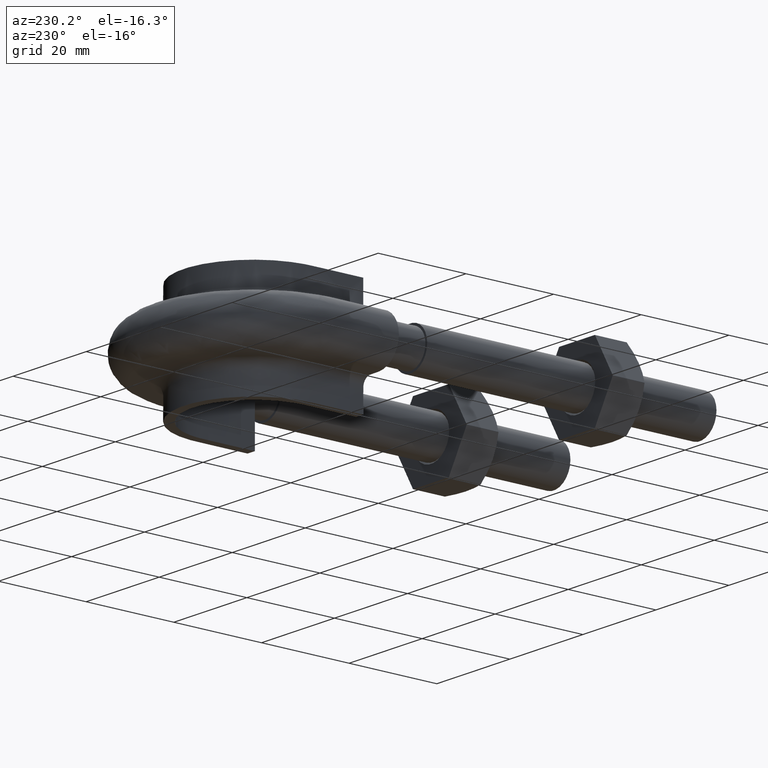
[diagram: clean part render]
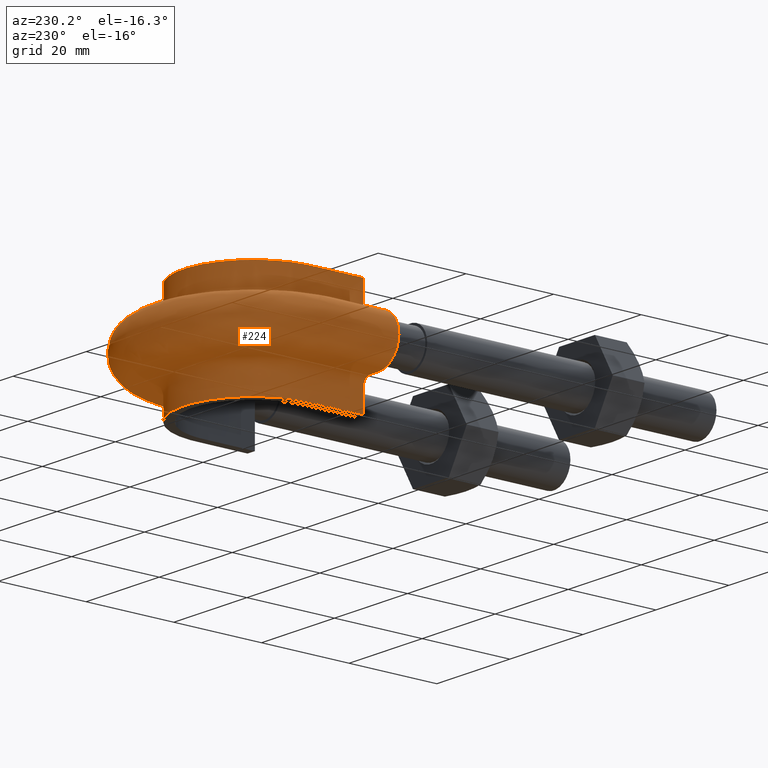
[diagram: same view with one face highlighted and labeled with its STEP entity id]
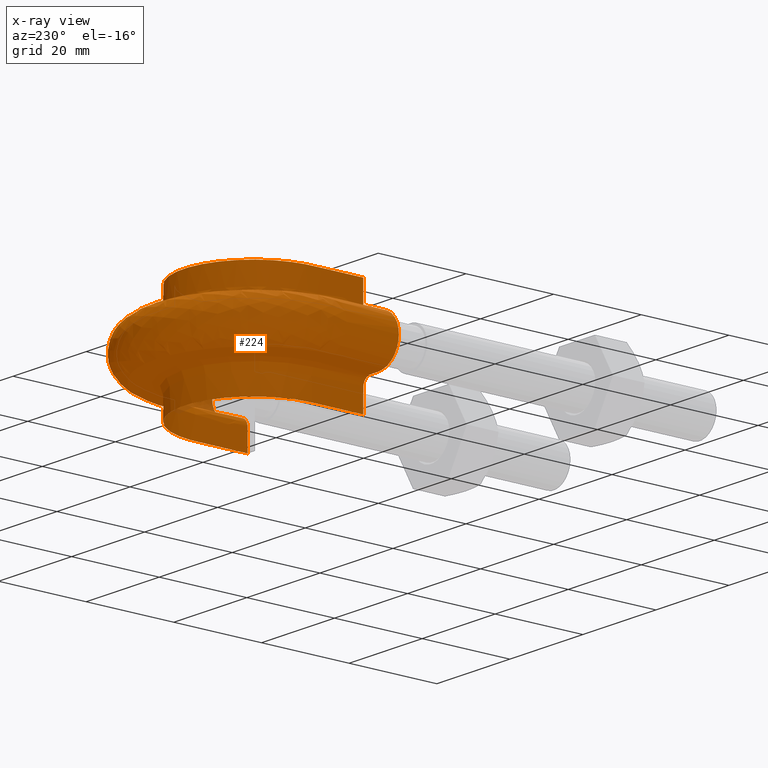
[diagram: x-ray of the same camera — body ghosted, the highlighted face saturated]
A machine part, auxiliary view. The second image highlights one B-rep face of the part: STEP entity #224.
The next image is the same camera in x-ray: the body ghosted, the highlighted face saturated — about 1% of this face is hidden behind the body in this view.
In plain terms, the highlighted face is a freeform B-spline surface patch.
Its self-contained STEP definition (entity closure, byte-faithful):
#224 = ADVANCED_FACE( '', ( #291 ), #292, .F. );
#291 = FACE_OUTER_BOUND( '', #431, .T. );
#292 = B_SPLINE_SURFACE_WITH_KNOTS( '', 3, 3, ( ( #432, #433, #434, #435, #436, #437, #438, #439, #440, #441, #442, #443, #444, #445, #446, #447, #448, #449 ), ( #450, #451, #452, #453, #454, #455, #456, #457, #458, #459, #460, #461, #462, #463, #464, #465, #466, #467 ), ( #468, #469, #470, #471, #472, #473, #474, #475, #476, #477, #478, #479, #480, #481, #482, #483, #484, #485 ), ( #486, #487, #488, #489, #490, #491, #492, #493, #494, #495, #496, #497, #498, #499, #500, #501, #502, #503 ), ( #504, #505, #506, #507, #508, #509, #510, #511, #512, #513, #514, #515, #516, #517, #518, #519, #520, #521 ), ( #522, #523, #524, #525, #526, #527, #528, #529, #530, #531, #532, #533, #534, #535, #536, #537, #538, #539 ), ( #540, #541, #542, #543, #544, #545, #546, #547, #548, #549, #550, #551, #552, #553, #554, #555, #556, #557 ), ( #558, #559, #560, #561, #562, #563, #564, #565, #566, #567, #568, #569, #570, #571, #572, #573, #574, #575 ), ( #576, #577, #578, #579, #580, #581, #582, #583, #584, #585, #586, #587, #588, #589, #590, #591, #592, #593 ), ( #594, #595, #596, #597, #598, #599, #600, #601, #602, #603, #604, #605, #606, #607, #608, #609, #610, #611 ), ( #612, #613, #614, #615, #616, #617, #618, #619, #620, #621, #622, #623, #624, #625, #626, #627, #628, #629 ), ( #630, #631, #632, #633, #634, #635, #636, #637, #638, #639, #640, #641, #642, #643, #644, #645, #646, #647 ), ( #648, #649, #650, #651, #652, #653, #654, #655, #656, #657, #658, #659, #660, #661, #662, #663, #664, #665 ), ( #666, #667, #668, #669, #670, #671, #672, #673, #674, #675, #676, #677, #678, #679, #680, #681, #682, #683 ), ( #684, #685, #686, #687, #688, #689, #690, #691, #692, #693, #694, #695, #696, #697, #698, #699, #700, #701 ), ( #702, #703, #704, #705, #706, #707, #708, #709, #710, #711, #712, #713, #714, #715, #716, #717, #718, #719 ), ( #720, #721, #722, #723, #724, #725, #726, #727, #728, #729, #730, #731, #732, #733, #734, #735, #736, #737 ), ( #738, #739, #740, #741, #742, #743, #744, #745, #746, #747, #748, #749, #750, #751, #752, #753, #754, #755 ), ( #756, #757, #758, #759, #760, #761, #762, #763, #764, #765, #766, #767, #768, #769, #770, #771, #772, #773 ), ( #774, #775, #776, #777, #778, #779, #780, #781, #782, #783, #784, #785, #786, #787, #788, #789, #790, #791 ), ( #792, #793, #794, #795, #796, #797, #798, #799, #800, #801, #802, #803, #804, #805, #806, #807, #808, #809 ), ( #810, #811, #812, #813, #814, #815, #816, #817, #818, #819, #820, #821, #822, #823, #824, #825, #826, #827 ), ( #828, #829, #830, #831, #832, #833, #834, #835, #836, #837, #838, #839, #840, #841, #842, #843, #844, #845 ), ( #846, #847, #848, #849, #850, #851, #852, #853, #854, #855, #856, #857, #858, #859, #860, #861, #862, #863 ), ( #864, #865, #866, #867, #868, #869, #870, #871, #872, #873, #874, #875, #876, #877, #878, #879, #880, #881 ), ( #882, #883, #884, #885, #886, #887, #888, #889, #890, #891, #892, #893, #894, #895, #896, #897, #898, #899 ), ( #900, #901, #902, #903, #904, #905, #906, #907, #908, #909, #910, #911, #912, #913, #914, #915, #916, #917 ), ( #918, #919, #920, #921, #922, #923, #924, #925, #926, #927, #928, #929, #930, #931, #932, #933, #934, #935 ), ( #936, #937, #938, #939, #940, #941, #942, #943, #944, #945, #946, #947, #948, #949, #950, #951, #952, #953 ), ( #954, #955, #956, #957, #958, #959, #960, #961, #962, #963, #964, #965, #966, #967, #968, #969, #970, #971 ), ( #972, #973, #974, #975, #976, #977, #978, #979, #980, #981, #982, #983, #984, #985, #986, #987, #988, #989 ) ), .UNSPECIFIED., .F., .F., .F., ( 4, 3, 1, 1, 1, 3, 3, 1, 1, 1, 3, 3, 1, 1, 1, 3, 4 ), ( 4, 3, 1, 1, 1, 1, 1, 1, 1, 1, 3, 4 ), ( 0.000000000000000, 0.0526315789473684, 0.105263157894737, 0.157894736842105, 0.210526315789474, 0.263157894736842, 0.315789473684211, 0.368421052631579, 0.421052631578947, 0.473684210526316, 0.526315789473684, 0.578947368421053, 0.631578947368421, 0.684210526315789, 0.736842105263158, 0.789473684210526, 0.842105263157895 ), ( 0.000000000000000, 1.00000000000000, 1.50000000000000, 1.75000000000000, 2.00000000000000, 3.00000000000000, 4.00000000000000, 5.00000000000000, 5.25000000000000, 5.50000000000000, 6.00000000000000, 7.00000000000000 ), .UNSPECIFIED. );
#431 = EDGE_LOOP( '', ( #1329, #1330, #1331, #1332 ) );
#432 = CARTESIAN_POINT( '', ( -15.8500000000000, 69.0500000000000, 12.5000000000000 ) );
#433 = CARTESIAN_POINT( '', ( -15.8500000000000, 74.4166666666667, 12.5000000000000 ) );
#434 = CARTESIAN_POINT( '', ( -15.8500000000000, 79.7833333333333, 12.5000000000000 ) );
#435 = CARTESIAN_POINT( '', ( -15.8500000000000, 85.1500000000000, 12.5000000000000 ) );
#436 = CARTESIAN_POINT( '', ( -15.8500000000000, 86.7930222221415, 12.5000000000000 ) );
#437 = CARTESIAN_POINT( '', ( -15.4471644107632, 89.2907471890249, 12.5000000000000 ) );
#438 = CARTESIAN_POINT( '', ( -14.1686079776779, 92.3865460861670, 12.5000000000000 ) );
#439 = CARTESIAN_POINT( '', ( -11.5879210877828, 96.6228758250557, 12.5000000000000 ) );
#440 = CARTESIAN_POINT( '', ( -5.22635801800513, 101.253208628485, 12.5000000000000 ) );
#441 = CARTESIAN_POINT( '', ( 5.22635801800517, 101.253208628485, 12.5000000000000 ) );
#442 = CARTESIAN_POINT( '', ( 11.5879210877829, 96.6228758250557, 12.5000000000000 ) );
#443 = CARTESIAN_POINT( '', ( 14.1686079776779, 92.3865460861669, 12.5000000000000 ) );
#444 = CARTESIAN_POINT( '', ( 15.4471644107632, 89.2907471890249, 12.5000000000000 ) );
#445 = CARTESIAN_POINT( '', ( 15.8500000000000, 86.7930222221415, 12.5000000000000 ) );
#446 = CARTESIAN_POINT( '', ( 15.8500000000000, 85.1500000000000, 12.5000000000000 ) );
#447 = CARTESIAN_POINT( '', ( 15.8500000000000, 79.7833333333333, 12.5000000000000 ) );
#448 = CARTESIAN_POINT( '', ( 15.8500000000000, 74.4166666666667, 12.5000000000000 ) );
#449 = CARTESIAN_POINT( '', ( 15.8500000000000, 69.0500000000000, 12.5000000000000 ) );
#450 = CARTESIAN_POINT( '', ( -15.8500000000000, 69.0500000000000, 10.8666666666667 ) );
#451 = CARTESIAN_POINT( '', ( -15.8500000000000, 74.4166666666667, 10.8666666666667 ) );
#452 = CARTESIAN_POINT( '', ( -15.8500000000000, 79.7833333333333, 10.8666666666667 ) );
#453 = CARTESIAN_POINT( '', ( -15.8500000000000, 85.1500000000000, 10.8666666666667 ) );
#454 = CARTESIAN_POINT( '', ( -15.8500000000000, 86.7930222221415, 10.8666666666667 ) );
#455 = CARTESIAN_POINT( '', ( -15.4471644107632, 89.2907471890249, 10.8666666666667 ) );
#456 = CARTESIAN_POINT( '', ( -14.1686079776779, 92.3865460861670, 10.8666666666667 ) );
#457 = CARTESIAN_POINT( '', ( -11.5879210877828, 96.6228758250557, 10.8666666666667 ) );
#458 = CARTESIAN_POINT( '', ( -5.22635801800512, 101.253208628485, 10.8666666666667 ) );
#459 = CARTESIAN_POINT( '', ( 5.22635801800516, 101.253208628485, 10.8666666666666 ) );
#460 = CARTESIAN_POINT( '', ( 11.5879210877829, 96.6228758250557, 10.8666666666667 ) );
#461 = CARTESIAN_POINT( '', ( 14.1686079776779, 92.3865460861669, 10.8666666666666 ) );
#462 = CARTESIAN_POINT( '', ( 15.4471644107632, 89.2907471890249, 10.8666666666667 ) );
#463 = CARTESIAN_POINT( '', ( 15.8500000000000, 86.7930222221415, 10.8666666666667 ) );
#464 = CARTESIAN_POINT( '', ( 15.8500000000000, 85.1500000000000, 10.8666666666667 ) );
#465 = CARTESIAN_POINT( '', ( 15.8500000000000, 79.7833333333333, 10.8666666666667 ) );
#466 = CARTESIAN_POINT( '', ( 15.8500000000000, 74.4166666666667, 10.8666666666667 ) );
#467 = CARTESIAN_POINT( '', ( 15.8500000000000, 69.0500000000000, 10.8666666666667 ) );
#468 = CARTESIAN_POINT( '', ( -15.8500000000000, 69.0500000000000, 9.23333333333332 ) );
#469 = CARTESIAN_POINT( '', ( -15.8500000000000, 74.4166666666667, 9.23333333333332 ) );
#470 = CARTESIAN_POINT( '', ( -15.8500000000000, 79.7833333333333, 9.23333333333332 ) );
#471 = CARTESIAN_POINT( '', ( -15.8500000000000, 85.1500000000000, 9.23333333333332 ) );
#472 = CARTESIAN_POINT( '', ( -15.8500000000000, 86.7930222221415, 9.23333333333332 ) );
#473 = CARTESIAN_POINT( '', ( -15.4471644107632, 89.2907471890249, 9.23333333333331 ) );
#474 = CARTESIAN_POINT( '', ( -14.1686079776779, 92.3865460861670, 9.23333333333332 ) );
#475 = CARTESIAN_POINT( '', ( -11.5879210877828, 96.6228758250557, 9.23333333333332 ) );
#476 = CARTESIAN_POINT( '', ( -5.22635801800512, 101.253208628485, 9.23333333333333 ) );
#477 = CARTESIAN_POINT( '', ( 5.22635801800516, 101.253208628485, 9.23333333333331 ) );
#478 = CARTESIAN_POINT( '', ( 11.5879210877829, 96.6228758250557, 9.23333333333333 ) );
#479 = CARTESIAN_POINT( '', ( 14.1686079776779, 92.3865460861669, 9.23333333333331 ) );
#480 = CARTESIAN_POINT( '', ( 15.4471644107632, 89.2907471890249, 9.23333333333332 ) );
#481 = CARTESIAN_POINT( '', ( 15.8500000000000, 86.7930222221415, 9.23333333333332 ) );
#482 = CARTESIAN_POINT( '', ( 15.8500000000000, 85.1500000000000, 9.23333333333332 ) );
#483 = CARTESIAN_POINT( '', ( 15.8500000000000, 79.7833333333333, 9.23333333333332 ) );
#484 = CARTESIAN_POINT( '', ( 15.8500000000000, 74.4166666666667, 9.23333333333332 ) );
#485 = CARTESIAN_POINT( '', ( 15.8500000000000, 69.0500000000000, 9.23333333333332 ) );
#486 = CARTESIAN_POINT( '', ( -15.8500000000000, 69.0500000000000, 7.59999999999998 ) );
#487 = CARTESIAN_POINT( '', ( -15.8500000000000, 74.4166666666667, 7.59999999999998 ) );
#488 = CARTESIAN_POINT( '', ( -15.8500000000000, 79.7833333333333, 7.59999999999998 ) );
#489 = CARTESIAN_POINT( '', ( -15.8500000000000, 85.1500000000000, 7.59999999999998 ) );
#490 = CARTESIAN_POINT( '', ( -15.8500000000000, 86.7930222221415, 7.59999999999998 ) );
#491 = CARTESIAN_POINT( '', ( -15.4471644107632, 89.2907471890249, 7.59999999999998 ) );
#492 = CARTESIAN_POINT( '', ( -14.1686079776779, 92.3865460861670, 7.59999999999998 ) );
#493 = CARTESIAN_POINT( '', ( -11.5879210877828, 96.6228758250557, 7.59999999999998 ) );
#494 = CARTESIAN_POINT( '', ( -5.22635801800513, 101.253208628485, 7.59999999999999 ) );
#495 = CARTESIAN_POINT( '', ( 5.22635801800517, 101.253208628485, 7.59999999999997 ) );
#496 = CARTESIAN_POINT( '', ( 11.5879210877829, 96.6228758250557, 7.59999999999999 ) );
#497 = CARTESIAN_POINT( '', ( 14.1686079776779, 92.3865460861669, 7.59999999999998 ) );
#498 = CARTESIAN_POINT( '', ( 15.4471644107632, 89.2907471890249, 7.59999999999998 ) );
#499 = CARTESIAN_POINT( '', ( 15.8500000000000, 86.7930222221415, 7.59999999999998 ) );
#500 = CARTESIAN_POINT( '', ( 15.8500000000000, 85.1500000000000, 7.59999999999998 ) );
#501 = CARTESIAN_POINT( '', ( 15.8500000000000, 79.7833333333333, 7.59999999999998 ) );
#502 = CARTESIAN_POINT( '', ( 15.8500000000000, 74.4166666666667, 7.59999999999998 ) );
#503 = CARTESIAN_POINT( '', ( 15.8500000000000, 69.0500000000000, 7.59999999999998 ) );
#504 = CARTESIAN_POINT( '', ( -15.8500000000000, 69.0500000000000, 7.33823584172332 ) );
#505 = CARTESIAN_POINT( '', ( -15.8500000000000, 74.4166666666667, 7.33823584172332 ) );
#506 = CARTESIAN_POINT( '', ( -15.8500000000000, 79.7833333333333, 7.33823584172332 ) );
#507 = CARTESIAN_POINT( '', ( -15.8500000000000, 85.1500000000000, 7.33823584172332 ) );
#508 = CARTESIAN_POINT( '', ( -15.8500000000000, 86.7930222221415, 7.33823584172332 ) );
#509 = CARTESIAN_POINT( '', ( -15.4471644107632, 89.2907471890249, 7.33823584172332 ) );
#510 = CARTESIAN_POINT( '', ( -14.1686079776779, 92.3865460861670, 7.33823584172332 ) );
#511 = CARTESIAN_POINT( '', ( -11.5879210877828, 96.6228758250557, 7.33823584172332 ) );
#512 = CARTESIAN_POINT( '', ( -5.22635801800512, 101.253208628485, 7.33823584172333 ) );
#513 = CARTESIAN_POINT( '', ( 5.22635801800517, 101.253208628485, 7.33823584172331 ) );
#514 = CARTESIAN_POINT( '', ( 11.5879210877829, 96.6228758250557, 7.33823584172333 ) );
#515 = CARTESIAN_POINT( '', ( 14.1686079776779, 92.3865460861669, 7.33823584172331 ) );
#516 = CARTESIAN_POINT( '', ( 15.4471644107632, 89.2907471890249, 7.33823584172332 ) );
#517 = CARTESIAN_POINT( '', ( 15.8500000000000, 86.7930222221415, 7.33823584172332 ) );
#518 = CARTESIAN_POINT( '', ( 15.8500000000000, 85.1500000000000, 7.33823584172332 ) );
#519 = CARTESIAN_POINT( '', ( 15.8500000000000, 79.7833333333333, 7.33823584172332 ) );
#520 = CARTESIAN_POINT( '', ( 15.8500000000000, 74.4166666666667, 7.33823584172332 ) );
#521 = CARTESIAN_POINT( '', ( 15.8500000000000, 69.0500000000000, 7.33823584172332 ) );
#522 = CARTESIAN_POINT( '', ( -15.9541362568359, 69.0500000000000, 6.81470752516999 ) );
#523 = CARTESIAN_POINT( '', ( -15.9541362568359, 74.4166666666667, 6.81470752516999 ) );
#524 = CARTESIAN_POINT( '', ( -15.9541362568359, 79.7833333333333, 6.81470752516999 ) );
#525 = CARTESIAN_POINT( '', ( -15.9541362568359, 85.1500000000000, 6.81470752516999 ) );
#526 = CARTESIAN_POINT( '', ( -15.9541362568359, 86.8043008624542, 6.81470752516999 ) );
#527 = CARTESIAN_POINT( '', ( -15.5486136031007, 89.3181109096887, 6.81470752516999 ) );
#528 = CARTESIAN_POINT( '', ( -14.2619323017759, 92.4337199575683, 6.81470752516999 ) );
#529 = CARTESIAN_POINT( '', ( -11.6637657839457, 96.6987055899314, 6.81470752516999 ) );
#530 = CARTESIAN_POINT( '', ( -5.26084038438269, 101.358879437208, 6.81470752517000 ) );
#531 = CARTESIAN_POINT( '', ( 5.26084038438274, 101.358879437208, 6.81470752516999 ) );
#532 = CARTESIAN_POINT( '', ( 11.6637657839457, 96.6987055899314, 6.81470752517000 ) );
#533 = CARTESIAN_POINT( '', ( 14.2619323017760, 92.4337199575683, 6.81470752516999 ) );
#534 = CARTESIAN_POINT( '', ( 15.5486136031007, 89.3181109096888, 6.81470752516999 ) );
#535 = CARTESIAN_POINT( '', ( 15.9541362568359, 86.8043008624542, 6.81470752516999 ) );
#536 = CARTESIAN_POINT( '', ( 15.9541362568359, 85.1500000000000, 6.81470752516999 ) );
#537 = CARTESIAN_POINT( '', ( 15.9541362568359, 79.7833333333333, 6.81470752516999 ) );
#538 = CARTESIAN_POINT( '', ( 15.9541362568359, 74.4166666666667, 6.81470752516999 ) );
#539 = CARTESIAN_POINT( '', ( 15.9541362568359, 69.0500000000000, 6.81470752516999 ) );
#540 = CARTESIAN_POINT( '', ( -16.3989687109389, 69.0500000000000, 6.14896871093886 ) );
#541 = CARTESIAN_POINT( '', ( -16.3989687109389, 74.4166666666667, 6.14896871093886 ) );
#542 = CARTESIAN_POINT( '', ( -16.3989687109389, 79.7833333333333, 6.14896871093886 ) );
#543 = CARTESIAN_POINT( '', ( -16.3989687109389, 85.1500000000000, 6.14896871093886 ) );
#544 = CARTESIAN_POINT( '', ( -16.3989687109389, 86.8524791377414, 6.14896871093886 ) );
#545 = CARTESIAN_POINT( '', ( -15.9819678887780, 89.4349988350486, 6.14896871093886 ) );
#546 = CARTESIAN_POINT( '', ( -14.6605800866819, 92.6352296874415, 6.14896871093886 ) );
#547 = CARTESIAN_POINT( '', ( -11.9877469154933, 97.0226229404160, 6.14896871093886 ) );
#548 = CARTESIAN_POINT( '', ( -5.40813659153540, 101.810266942385, 6.14896871093887 ) );
#549 = CARTESIAN_POINT( '', ( 5.40813659153545, 101.810266942385, 6.14896871093885 ) );
#550 = CARTESIAN_POINT( '', ( 11.9877469154933, 97.0226229404160, 6.14896871093887 ) );
#551 = CARTESIAN_POINT( '', ( 14.6605800866819, 92.6352296874415, 6.14896871093886 ) );
#552 = CARTESIAN_POINT( '', ( 15.9819678887781, 89.4349988350486, 6.14896871093886 ) );
#553 = CARTESIAN_POINT( '', ( 16.3989687109389, 86.8524791377414, 6.14896871093886 ) );
#554 = CARTESIAN_POINT( '', ( 16.3989687109389, 85.1500000000000, 6.14896871093886 ) );
#555 = CARTESIAN_POINT( '', ( 16.3989687109389, 79.7833333333333, 6.14896871093886 ) );
#556 = CARTESIAN_POINT( '', ( 16.3989687109389, 74.4166666666667, 6.14896871093886 ) );
#557 = CARTESIAN_POINT( '', ( 16.3989687109389, 69.0500000000000, 6.14896871093886 ) );
#558 = CARTESIAN_POINT( '', ( -17.0647075251700, 69.0500000000000, 5.70413625683589 ) );
#559 = CARTESIAN_POINT( '', ( -17.0647075251700, 74.4166666666667, 5.70413625683589 ) );
#560 = CARTESIAN_POINT( '', ( -17.0647075251700, 79.7833333333333, 5.70413625683589 ) );
#561 = CARTESIAN_POINT( '', ( -17.0647075251700, 85.1500000000000, 5.70413625683589 ) );
#562 = CARTESIAN_POINT( '', ( -17.0647075251700, 86.9245830221716, 5.70413625683589 ) );
#563 = CARTESIAN_POINT( '', ( -16.6305284099986, 89.6099339777281, 5.70413625683589 ) );
#564 = CARTESIAN_POINT( '', ( -15.2571986588459, 92.9368103104028, 5.70413625683589 ) );
#565 = CARTESIAN_POINT( '', ( -12.4726189439622, 97.5073995137787, 5.70413625683589 ) );
#566 = CARTESIAN_POINT( '', ( -5.62858094397892, 102.485816083828, 5.70413625683590 ) );
#567 = CARTESIAN_POINT( '', ( 5.62858094397897, 102.485816083828, 5.70413625683589 ) );
#568 = CARTESIAN_POINT( '', ( 12.4726189439623, 97.5073995137786, 5.70413625683590 ) );
#569 = CARTESIAN_POINT( '', ( 15.2571986588460, 92.9368103104028, 5.70413625683589 ) );
#570 = CARTESIAN_POINT( '', ( 16.6305284099986, 89.6099339777282, 5.70413625683589 ) );
#571 = CARTESIAN_POINT( '', ( 17.0647075251700, 86.9245830221715, 5.70413625683589 ) );
#572 = CARTESIAN_POINT( '', ( 17.0647075251700, 85.1500000000000, 5.70413625683589 ) );
#573 = CARTESIAN_POINT( '', ( 17.0647075251700, 79.7833333333333, 5.70413625683589 ) );
#574 = CARTESIAN_POINT( '', ( 17.0647075251700, 74.4166666666667, 5.70413625683589 ) );
#575 = CARTESIAN_POINT( '', ( 17.0647075251700, 69.0500000000000, 5.70413625683589 ) );
#576 = CARTESIAN_POINT( '', ( -17.5882358417233, 69.0500000000000, 5.59999999999998 ) );
#577 = CARTESIAN_POINT( '', ( -17.5882358417233, 74.4166666666667, 5.59999999999998 ) );
#578 = CARTESIAN_POINT( '', ( -17.5882358417233, 79.7833333333333, 5.59999999999998 ) );
#579 = CARTESIAN_POINT( '', ( -17.5882358417233, 85.1500000000000, 5.59999999999998 ) );
#580 = CARTESIAN_POINT( '', ( -17.5882358417233, 86.9812845760328, 5.59999999999998 ) );
#581 = CARTESIAN_POINT( '', ( -17.1405479410810, 89.7475006912730, 5.59999999999998 ) );
#582 = CARTESIAN_POINT( '', ( -15.7263717189600, 93.1739693770954, 5.59999999999998 ) );
#583 = CARTESIAN_POINT( '', ( -12.8539159802501, 97.8886214854165, 5.59999999999998 ) );
#584 = CARTESIAN_POINT( '', ( -5.80193550625081, 103.017059113690, 5.59999999999999 ) );
#585 = CARTESIAN_POINT( '', ( 5.80193550625085, 103.017059113690, 5.59999999999998 ) );
#586 = CARTESIAN_POINT( '', ( 12.8539159802502, 97.8886214854165, 5.59999999999999 ) );
#587 = CARTESIAN_POINT( '', ( 15.7263717189600, 93.1739693770954, 5.59999999999998 ) );
#588 = CARTESIAN_POINT( '', ( 17.1405479410811, 89.7475006912730, 5.59999999999999 ) );
#589 = CARTESIAN_POINT( '', ( 17.5882358417234, 86.9812845760328, 5.59999999999998 ) );
#590 = CARTESIAN_POINT( '', ( 17.5882358417234, 85.1500000000000, 5.59999999999998 ) );
#591 = CARTESIAN_POINT( '', ( 17.5882358417234, 79.7833333333333, 5.59999999999998 ) );
#592 = CARTESIAN_POINT( '', ( 17.5882358417234, 74.4166666666667, 5.59999999999998 ) );
#593 = CARTESIAN_POINT( '', ( 17.5882358417234, 69.0500000000000, 5.59999999999998 ) );
#594 = CARTESIAN_POINT( '', ( -17.8500000000000, 69.0500000000000, 5.59999999999998 ) );
#595 = CARTESIAN_POINT( '', ( -17.8500000000000, 74.4166666666667, 5.59999999999998 ) );
#596 = CARTESIAN_POINT( '', ( -17.8500000000000, 79.7833333333333, 5.59999999999998 ) );
#597 = CARTESIAN_POINT( '', ( -17.8500000000000, 85.1500000000000, 5.59999999999998 ) );
#598 = CARTESIAN_POINT( '', ( -17.8500000000000, 87.0096353529635, 5.59999999999998 ) );
#599 = CARTESIAN_POINT( '', ( -17.3955577066223, 89.8162840480455, 5.59999999999998 ) );
#600 = CARTESIAN_POINT( '', ( -15.9609582490170, 93.2925489104417, 5.59999999999998 ) );
#601 = CARTESIAN_POINT( '', ( -13.0445644983941, 98.0792324712354, 5.59999999999998 ) );
#602 = CARTESIAN_POINT( '', ( -5.88861278738675, 103.282680628621, 5.59999999999999 ) );
#603 = CARTESIAN_POINT( '', ( 5.88861278738680, 103.282680628621, 5.59999999999998 ) );
#604 = CARTESIAN_POINT( '', ( 13.0445644983941, 98.0792324712354, 5.59999999999999 ) );
#605 = CARTESIAN_POINT( '', ( 15.9609582490170, 93.2925489104416, 5.59999999999998 ) );
#606 = CARTESIAN_POINT( '', ( 17.3955577066223, 89.8162840480455, 5.59999999999999 ) );
#607 = CARTESIAN_POINT( '', ( 17.8500000000000, 87.0096353529635, 5.59999999999998 ) );
#608 = CARTESIAN_POINT( '', ( 17.8500000000000, 85.1500000000000, 5.59999999999998 ) );
#609 = CARTESIAN_POINT( '', ( 17.8500000000000, 79.7833333333333, 5.59999999999998 ) );
#610 = CARTESIAN_POINT( '', ( 17.8500000000000, 74.4166666666667, 5.59999999999998 ) );
#611 = CARTESIAN_POINT( '', ( 17.8500000000000, 69.0500000000000, 5.59999999999998 ) );
#612 = CARTESIAN_POINT( '', ( -18.5666666666667, 69.0500000000000, 5.60000000000000 ) );
#613 = CARTESIAN_POINT( '', ( -18.5666666666667, 74.4166666666667, 5.60000000000000 ) );
#614 = CARTESIAN_POINT( '', ( -18.5666666666667, 79.7833333333333, 5.60000000000000 ) );
#615 = CARTESIAN_POINT( '', ( -18.5666666666667, 85.1500000000000, 5.60000000000000 ) );
#616 = CARTESIAN_POINT( '', ( -18.5666666666667, 87.0872550581747, 5.60000000000000 ) );
#617 = CARTESIAN_POINT( '', ( -18.0937319709718, 90.0046014225279, 5.60000000000000 ) );
#618 = CARTESIAN_POINT( '', ( -16.6032170962468, 93.6171999224734, 5.60000000000000 ) );
#619 = CARTESIAN_POINT( '', ( -13.5665283871965, 98.6010936027831, 5.60000000000000 ) );
#620 = CARTESIAN_POINT( '', ( -6.12592074641518, 104.009908095336, 5.60000000000001 ) );
#621 = CARTESIAN_POINT( '', ( 6.12592074641522, 104.009908095336, 5.59999999999999 ) );
#622 = CARTESIAN_POINT( '', ( 13.5665283871965, 98.6010936027832, 5.60000000000001 ) );
#623 = CARTESIAN_POINT( '', ( 16.6032170962469, 93.6171999224734, 5.60000000000000 ) );
#624 = CARTESIAN_POINT( '', ( 18.0937319709718, 90.0046014225279, 5.60000000000000 ) );
#625 = CARTESIAN_POINT( '', ( 18.5666666666667, 87.0872550581747, 5.60000000000000 ) );
#626 = CARTESIAN_POINT( '', ( 18.5666666666667, 85.1500000000000, 5.60000000000000 ) );
#627 = CARTESIAN_POINT( '', ( 18.5666666666667, 79.7833333333333, 5.60000000000000 ) );
#628 = CARTESIAN_POINT( '', ( 18.5666666666667, 74.4166666666667, 5.60000000000000 ) );
#629 = CARTESIAN_POINT( '', ( 18.5666666666667, 69.0500000000000, 5.60000000000000 ) );
#630 = CARTESIAN_POINT( '', ( -19.2833333333333, 69.0500000000000, 5.60000000000000 ) );
#631 = CARTESIAN_POINT( '', ( -19.2833333333333, 74.4166666666667, 5.60000000000000 ) );
#632 = CARTESIAN_POINT( '', ( -19.2833333333333, 79.7833333333333, 5.60000000000000 ) );
#633 = CARTESIAN_POINT( '', ( -19.2833333333333, 85.1500000000000, 5.60000000000000 ) );
#634 = CARTESIAN_POINT( '', ( -19.2833333333333, 87.1648747633859, 5.60000000000000 ) );
#635 = CARTESIAN_POINT( '', ( -18.7919062353213, 90.1929187970103, 5.60000000000000 ) );
#636 = CARTESIAN_POINT( '', ( -17.2454759434767, 93.9418509345052, 5.60000000000000 ) );
#637 = CARTESIAN_POINT( '', ( -14.0884922759988, 99.1229547343309, 5.60000000000000 ) );
#638 = CARTESIAN_POINT( '', ( -6.36322870544359, 104.737135562052, 5.60000000000001 ) );
#639 = CARTESIAN_POINT( '', ( 6.36322870544363, 104.737135562052, 5.59999999999999 ) );
#640 = CARTESIAN_POINT( '', ( 14.0884922759989, 99.1229547343308, 5.60000000000001 ) );
#641 = CARTESIAN_POINT( '', ( 17.2454759434767, 93.9418509345052, 5.60000000000000 ) );
#642 = CARTESIAN_POINT( '', ( 18.7919062353213, 90.1929187970103, 5.60000000000000 ) );
#643 = CARTESIAN_POINT( '', ( 19.2833333333334, 87.1648747633859, 5.60000000000000 ) );
#644 = CARTESIAN_POINT( '', ( 19.2833333333334, 85.1500000000000, 5.60000000000000 ) );
#645 = CARTESIAN_POINT( '', ( 19.2833333333334, 79.7833333333333, 5.60000000000000 ) );
#646 = CARTESIAN_POINT( '', ( 19.2833333333334, 74.4166666666667, 5.60000000000000 ) );
#647 = CARTESIAN_POINT( '', ( 19.2833333333334, 69.0500000000000, 5.60000000000000 ) );
#648 = CARTESIAN_POINT( '', ( -20.0000000000000, 69.0500000000000, 5.60000000000000 ) );
#649 = CARTESIAN_POINT( '', ( -20.0000000000000, 74.4166666666667, 5.60000000000000 ) );
#650 = CARTESIAN_POINT( '', ( -20.0000000000000, 79.7833333333333, 5.60000000000000 ) );
#651 = CARTESIAN_POINT( '', ( -20.0000000000000, 85.1500000000000, 5.60000000000000 ) );
#652 = CARTESIAN_POINT( '', ( -20.0000000000000, 87.2424944685971, 5.60000000000000 ) );
#653 = CARTESIAN_POINT( '', ( -19.4900804996708, 90.3812361714926, 5.60000000000000 ) );
#654 = CARTESIAN_POINT( '', ( -17.8877347907065, 94.2665019465370, 5.60000000000000 ) );
#655 = CARTESIAN_POINT( '', ( -14.6104561648012, 99.6448158658786, 5.60000000000000 ) );
#656 = CARTESIAN_POINT( '', ( -6.60053666447200, 105.464363028767, 5.60000000000001 ) );
#657 = CARTESIAN_POINT( '', ( 6.60053666447204, 105.464363028767, 5.59999999999999 ) );
#658 = CARTESIAN_POINT( '', ( 14.6104561648012, 99.6448158658785, 5.60000000000001 ) );
#659 = CARTESIAN_POINT( '', ( 17.8877347907065, 94.2665019465369, 5.60000000000000 ) );
#660 = CARTESIAN_POINT( '', ( 19.4900804996708, 90.3812361714926, 5.60000000000000 ) );
#661 = CARTESIAN_POINT( '', ( 20.0000000000000, 87.2424944685970, 5.60000000000000 ) );
#662 = CARTESIAN_POINT( '', ( 20.0000000000000, 85.1500000000000, 5.60000000000000 ) );
#663 = CARTESIAN_POINT( '', ( 20.0000000000000, 79.7833333333333, 5.60000000000000 ) );
#664 = CARTESIAN_POINT( '', ( 20.0000000000000, 74.4166666666667, 5.60000000000000 ) );
#665 = CARTESIAN_POINT( '', ( 20.0000000000000, 69.0500000000000, 5.60000000000000 ) );
#666 = CARTESIAN_POINT( '', ( -21.4627416997969, 69.0500000000000, 5.60000000000001 ) );
#667 = CARTESIAN_POINT( '', ( -21.4627416997969, 74.4166666666667, 5.60000000000001 ) );
#668 = CARTESIAN_POINT( '', ( -21.4627416997969, 79.7833333333333, 5.60000000000001 ) );
#669 = CARTESIAN_POINT( '', ( -21.4627416997969, 85.1500000000000, 5.60000000000001 ) );
#670 = CARTESIAN_POINT( '', ( -21.4627416997969, 87.4009189981855, 5.60000000000001 ) );
#671 = CARTESIAN_POINT( '', ( -20.9150785603997, 90.7655985107275, 5.60000000000000 ) );
#672 = CARTESIAN_POINT( '', ( -19.1986075319715, 94.9291260021372, 5.60000000000001 ) );
#673 = CARTESIAN_POINT( '', ( -15.6758026940190, 100.709952663950, 5.60000000000000 ) );
#674 = CARTESIAN_POINT( '', ( -7.08489049800396, 106.948659690352, 5.60000000000001 ) );
#675 = CARTESIAN_POINT( '', ( 7.08489049800401, 106.948659690352, 5.60000000000000 ) );
#676 = CARTESIAN_POINT( '', ( 15.6758026940190, 100.709952663950, 5.60000000000001 ) );
#677 = CARTESIAN_POINT( '', ( 19.1986075319716, 94.9291260021371, 5.60000000000000 ) );
#678 = CARTESIAN_POINT( '', ( 20.9150785603998, 90.7655985107275, 5.60000000000001 ) );
#679 = CARTESIAN_POINT( '', ( 21.4627416997969, 87.4009189981854, 5.60000000000001 ) );
#680 = CARTESIAN_POINT( '', ( 21.4627416997969, 85.1500000000000, 5.60000000000001 ) );
#681 = CARTESIAN_POINT( '', ( 21.4627416997970, 79.7833333333333, 5.60000000000001 ) );
#682 = CARTESIAN_POINT( '', ( 21.4627416997970, 74.4166666666667, 5.60000000000001 ) );
#683 = CARTESIAN_POINT( '', ( 21.4627416997969, 69.0500000000000, 5.60000000000001 ) );
#684 = CARTESIAN_POINT( '', ( -24.3882250993908, 69.0500000000000, 4.38822509939086 ) );
#685 = CARTESIAN_POINT( '', ( -24.3882250993908, 74.4166666666667, 4.38822509939086 ) );
#686 = CARTESIAN_POINT( '', ( -24.3882250993908, 79.7833333333333, 4.38822509939086 ) );
#687 = CARTESIAN_POINT( '', ( -24.3882250993908, 85.1500000000000, 4.38822509939086 ) );
#688 = CARTESIAN_POINT( '', ( -24.3882250993908, 87.7177680573623, 4.38822509939086 ) );
#689 = CARTESIAN_POINT( '', ( -23.7650746818576, 91.5343231891973, 4.38822509939086 ) );
#690 = CARTESIAN_POINT( '', ( -21.8203530145016, 96.2543741133375, 4.38822509939086 ) );
#691 = CARTESIAN_POINT( '', ( -17.8064957524545, 102.840226260094, 4.38822509939086 ) );
#692 = CARTESIAN_POINT( '', ( -8.05359816506789, 109.917253013521, 4.38822509939087 ) );
#693 = CARTESIAN_POINT( '', ( 8.05359816506792, 109.917253013522, 4.38822509939086 ) );
#694 = CARTESIAN_POINT( '', ( 17.8064957524546, 102.840226260094, 4.38822509939087 ) );
#695 = CARTESIAN_POINT( '', ( 21.8203530145016, 96.2543741133375, 4.38822509939086 ) );
#696 = CARTESIAN_POINT( '', ( 23.7650746818577, 91.5343231891973, 4.38822509939086 ) );
#697 = CARTESIAN_POINT( '', ( 24.3882250993909, 87.7177680573623, 4.38822509939086 ) );
#698 = CARTESIAN_POINT( '', ( 24.3882250993909, 85.1500000000000, 4.38822509939086 ) );
#699 = CARTESIAN_POINT( '', ( 24.3882250993909, 79.7833333333333, 4.38822509939086 ) );
#700 = CARTESIAN_POINT( '', ( 24.3882250993909, 74.4166666666667, 4.38822509939086 ) );
#701 = CARTESIAN_POINT( '', ( 24.3882250993909, 69.0500000000000, 4.38822509939086 ) );
#702 = CARTESIAN_POINT( '', ( -26.2058874503046, 69.0500000000000, 2.59688645100852E-015 ) );
#703 = CARTESIAN_POINT( '', ( -26.2058874503046, 74.4166666666667, 2.59688645100852E-015 ) );
#704 = CARTESIAN_POINT( '', ( -26.2058874503046, 79.7833333333333, 2.59688645100852E-015 ) );
#705 = CARTESIAN_POINT( '', ( -26.2058874503046, 85.1500000000000, 2.59688645100852E-015 ) );
#706 = CARTESIAN_POINT( '', ( -26.2058874503046, 87.9146328236666, 2.59688645100852E-015 ) );
#707 = CARTESIAN_POINT( '', ( -25.5358352511855, 92.0119474705269, 2.59688645100852E-015 ) );
#708 = CARTESIAN_POINT( '', ( -23.4492968184332, 97.0777777250904, 2.59688645100852E-015 ) );
#709 = CARTESIAN_POINT( '', ( -19.1303386955418, 104.163808582726, 2.59688645100852E-015 ) );
#710 = CARTESIAN_POINT( '', ( -8.65547594557691, 111.761700436962, 2.59688645100852E-015 ) );
#711 = CARTESIAN_POINT( '', ( 8.65547594557695, 111.761700436962, 2.59688645100852E-015 ) );
#712 = CARTESIAN_POINT( '', ( 19.1303386955419, 104.163808582726, 2.59688645100852E-015 ) );
#713 = CARTESIAN_POINT( '', ( 23.4492968184332, 97.0777777250903, 2.59688645100852E-015 ) );
#714 = CARTESIAN_POINT( '', ( 25.5358352511856, 92.0119474705269, 2.59688645100852E-015 ) );
#715 = CARTESIAN_POINT( '', ( 26.2058874503046, 87.9146328236666, 2.59688645100852E-015 ) );
#716 = CARTESIAN_POINT( '', ( 26.2058874503046, 85.1500000000000, 2.59688645100852E-015 ) );
#717 = CARTESIAN_POINT( '', ( 26.2058874503046, 79.7833333333333, 2.59688645100852E-015 ) );
#718 = CARTESIAN_POINT( '', ( 26.2058874503046, 74.4166666666667, 2.59688645100852E-015 ) );
#719 = CARTESIAN_POINT( '', ( 26.2058874503046, 69.0500000000000, 2.59688645100852E-015 ) );
#720 = CARTESIAN_POINT( '', ( -24.3882250993908, 69.0500000000000, -4.38822509939086 ) );
#721 = CARTESIAN_POINT( '', ( -24.3882250993908, 74.4166666666667, -4.38822509939086 ) );
#722 = CARTESIAN_POINT( '', ( -24.3882250993908, 79.7833333333333, -4.38822509939086 ) );
#723 = CARTESIAN_POINT( '', ( -24.3882250993908, 85.1500000000000, -4.38822509939086 ) );
#724 = CARTESIAN_POINT( '', ( -24.3882250993908, 87.7177680573623, -4.38822509939086 ) );
#725 = CARTESIAN_POINT( '', ( -23.7650746818577, 91.5343231891973, -4.38822509939086 ) );
#726 = CARTESIAN_POINT( '', ( -21.8203530145016, 96.2543741133375, -4.38822509939086 ) );
#727 = CARTESIAN_POINT( '', ( -17.8064957524545, 102.840226260094, -4.38822509939086 ) );
#728 = CARTESIAN_POINT( '', ( -8.05359816506788, 109.917253013521, -4.38822509939087 ) );
#729 = CARTESIAN_POINT( '', ( 8.05359816506792, 109.917253013522, -4.38822509939086 ) );
#730 = CARTESIAN_POINT( '', ( 17.8064957524546, 102.840226260094, -4.38822509939087 ) );
#731 = CARTESIAN_POINT( '', ( 21.8203530145016, 96.2543741133375, -4.38822509939086 ) );
#732 = CARTESIAN_POINT( '', ( 23.7650746818577, 91.5343231891973, -4.38822509939086 ) );
#733 = CARTESIAN_POINT( '', ( 24.3882250993909, 87.7177680573623, -4.38822509939086 ) );
#734 = CARTESIAN_POINT( '', ( 24.3882250993909, 85.1500000000000, -4.38822509939086 ) );
#735 = CARTESIAN_POINT( '', ( 24.3882250993909, 79.7833333333333, -4.38822509939086 ) );
#736 = CARTESIAN_POINT( '', ( 24.3882250993909, 74.4166666666667, -4.38822509939086 ) );
#737 = CARTESIAN_POINT( '', ( 24.3882250993909, 69.0500000000000, -4.38822509939086 ) );
#738 = CARTESIAN_POINT( '', ( -21.4627416997969, 69.0500000000000, -5.60000000000000 ) );
#739 = CARTESIAN_POINT( '', ( -21.4627416997969, 74.4166666666667, -5.60000000000000 ) );
#740 = CARTESIAN_POINT( '', ( -21.4627416997969, 79.7833333333333, -5.60000000000000 ) );
#741 = CARTESIAN_POINT( '', ( -21.4627416997969, 85.1500000000000, -5.60000000000000 ) );
#742 = CARTESIAN_POINT( '', ( -21.4627416997969, 87.4009189981855, -5.60000000000000 ) );
#743 = CARTESIAN_POINT( '', ( -20.9150785603997, 90.7655985107275, -5.60000000000000 ) );
#744 = CARTESIAN_POINT( '', ( -19.1986075319715, 94.9291260021372, -5.60000000000000 ) );
#745 = CARTESIAN_POINT( '', ( -15.6758026940190, 100.709952663950, -5.60000000000000 ) );
#746 = CARTESIAN_POINT( '', ( -7.08489049800396, 106.948659690352, -5.60000000000001 ) );
#747 = CARTESIAN_POINT( '', ( 7.08489049800400, 106.948659690352, -5.60000000000000 ) );
#748 = CARTESIAN_POINT( '', ( 15.6758026940190, 100.709952663950, -5.60000000000001 ) );
#749 = CARTESIAN_POINT( '', ( 19.1986075319716, 94.9291260021371, -5.60000000000000 ) );
#750 = CARTESIAN_POINT( '', ( 20.9150785603998, 90.7655985107275, -5.60000000000000 ) );
#751 = CARTESIAN_POINT( '', ( 21.4627416997969, 87.4009189981854, -5.60000000000000 ) );
#752 = CARTESIAN_POINT( '', ( 21.4627416997969, 85.1500000000000, -5.60000000000000 ) );
#753 = CARTESIAN_POINT( '', ( 21.4627416997970, 79.7833333333333, -5.60000000000000 ) );
#754 = CARTESIAN_POINT( '', ( 21.4627416997970, 74.4166666666667, -5.60000000000000 ) );
#755 = CARTESIAN_POINT( '', ( 21.4627416997970, 69.0500000000000, -5.60000000000000 ) );
#756 = CARTESIAN_POINT( '', ( -20.0000000000000, 69.0500000000000, -5.60000000000000 ) );
#757 = CARTESIAN_POINT( '', ( -20.0000000000000, 74.4166666666667, -5.60000000000000 ) );
#758 = CARTESIAN_POINT( '', ( -20.0000000000000, 79.7833333333333, -5.60000000000000 ) );
#759 = CARTESIAN_POINT( '', ( -20.0000000000000, 85.1500000000000, -5.60000000000000 ) );
#760 = CARTESIAN_POINT( '', ( -20.0000000000000, 87.2424944685971, -5.60000000000000 ) );
#761 = CARTESIAN_POINT( '', ( -19.4900804996708, 90.3812361714926, -5.60000000000000 ) );
#762 = CARTESIAN_POINT( '', ( -17.8877347907065, 94.2665019465369, -5.60000000000000 ) );
#763 = CARTESIAN_POINT( '', ( -14.6104561648012, 99.6448158658786, -5.60000000000000 ) );
#764 = CARTESIAN_POINT( '', ( -6.60053666447200, 105.464363028767, -5.60000000000001 ) );
#765 = CARTESIAN_POINT( '', ( 6.60053666447204, 105.464363028767, -5.59999999999999 ) );
#766 = CARTESIAN_POINT( '', ( 14.6104561648012, 99.6448158658785, -5.60000000000001 ) );
#767 = CARTESIAN_POINT( '', ( 17.8877347907065, 94.2665019465369, -5.59999999999999 ) );
#768 = CARTESIAN_POINT( '', ( 19.4900804996708, 90.3812361714926, -5.60000000000000 ) );
#769 = CARTESIAN_POINT( '', ( 20.0000000000000, 87.2424944685970, -5.60000000000000 ) );
#770 = CARTESIAN_POINT( '', ( 20.0000000000000, 85.1500000000000, -5.60000000000000 ) );
#771 = CARTESIAN_POINT( '', ( 20.0000000000000, 79.7833333333333, -5.60000000000000 ) );
#772 = CARTESIAN_POINT( '', ( 20.0000000000000, 74.4166666666667, -5.60000000000000 ) );
#773 = CARTESIAN_POINT( '', ( 20.0000000000000, 69.0500000000000, -5.60000000000000 ) );
#774 = CARTESIAN_POINT( '', ( -19.2833333333333, 69.0500000000000, -5.60000000000000 ) );
#775 = CARTESIAN_POINT( '', ( -19.2833333333333, 74.4166666666667, -5.60000000000000 ) );
#776 = CARTESIAN_POINT( '', ( -19.2833333333333, 79.7833333333333, -5.60000000000000 ) );
#777 = CARTESIAN_POINT( '', ( -19.2833333333333, 85.1500000000000, -5.60000000000000 ) );
#778 = CARTESIAN_POINT( '', ( -19.2833333333333, 87.1648747633859, -5.60000000000000 ) );
#779 = CARTESIAN_POINT( '', ( -18.7919062353213, 90.1929187970103, -5.60000000000000 ) );
#780 = CARTESIAN_POINT( '', ( -17.2454759434767, 93.9418509345052, -5.60000000000000 ) );
#781 = CARTESIAN_POINT( '', ( -14.0884922759988, 99.1229547343309, -5.60000000000000 ) );
#782 = CARTESIAN_POINT( '', ( -6.36322870544359, 104.737135562052, -5.60000000000000 ) );
#783 = CARTESIAN_POINT( '', ( 6.36322870544363, 104.737135562052, -5.59999999999999 ) );
#784 = CARTESIAN_POINT( '', ( 14.0884922759989, 99.1229547343308, -5.60000000000000 ) );
#785 = CARTESIAN_POINT( '', ( 17.2454759434767, 93.9418509345052, -5.59999999999999 ) );
#786 = CARTESIAN_POINT( '', ( 18.7919062353213, 90.1929187970103, -5.60000000000000 ) );
#787 = CARTESIAN_POINT( '', ( 19.2833333333334, 87.1648747633859, -5.60000000000000 ) );
#788 = CARTESIAN_POINT( '', ( 19.2833333333334, 85.1500000000000, -5.60000000000000 ) );
#789 = CARTESIAN_POINT( '', ( 19.2833333333334, 79.7833333333333, -5.60000000000000 ) );
#790 = CARTESIAN_POINT( '', ( 19.2833333333334, 74.4166666666667, -5.60000000000000 ) );
#791 = CARTESIAN_POINT( '', ( 19.2833333333334, 69.0500000000000, -5.60000000000000 ) );
#792 = CARTESIAN_POINT( '', ( -18.5666666666667, 69.0500000000000, -5.60000000000000 ) );
#793 = CARTESIAN_POINT( '', ( -18.5666666666667, 74.4166666666667, -5.60000000000000 ) );
#794 = CARTESIAN_POINT( '', ( -18.5666666666667, 79.7833333333333, -5.60000000000000 ) );
#795 = CARTESIAN_POINT( '', ( -18.5666666666667, 85.1500000000000, -5.60000000000000 ) );
#796 = CARTESIAN_POINT( '', ( -18.5666666666667, 87.0872550581747, -5.60000000000000 ) );
#797 = CARTESIAN_POINT( '', ( -18.0937319709718, 90.0046014225279, -5.60000000000000 ) );
#798 = CARTESIAN_POINT( '', ( -16.6032170962468, 93.6171999224734, -5.60000000000000 ) );
#799 = CARTESIAN_POINT( '', ( -13.5665283871965, 98.6010936027831, -5.60000000000000 ) );
#800 = CARTESIAN_POINT( '', ( -6.12592074641518, 104.009908095336, -5.60000000000000 ) );
#801 = CARTESIAN_POINT( '', ( 6.12592074641522, 104.009908095336, -5.59999999999999 ) );
#802 = CARTESIAN_POINT( '', ( 13.5665283871965, 98.6010936027832, -5.60000000000000 ) );
#803 = CARTESIAN_POINT( '', ( 16.6032170962469, 93.6171999224734, -5.59999999999999 ) );
#804 = CARTESIAN_POINT( '', ( 18.0937319709718, 90.0046014225279, -5.60000000000000 ) );
#805 = CARTESIAN_POINT( '', ( 18.5666666666667, 87.0872550581747, -5.60000000000000 ) );
#806 = CARTESIAN_POINT( '', ( 18.5666666666667, 85.1500000000000, -5.60000000000000 ) );
#807 = CARTESIAN_POINT( '', ( 18.5666666666667, 79.7833333333333, -5.60000000000000 ) );
#808 = CARTESIAN_POINT( '', ( 18.5666666666667, 74.4166666666667, -5.60000000000000 ) );
#809 = CARTESIAN_POINT( '', ( 18.5666666666667, 69.0500000000000, -5.60000000000000 ) );
#810 = CARTESIAN_POINT( '', ( -17.8500000000000, 69.0500000000000, -5.60000000000000 ) );
#811 = CARTESIAN_POINT( '', ( -17.8500000000000, 74.4166666666667, -5.60000000000000 ) );
#812 = CARTESIAN_POINT( '', ( -17.8500000000000, 79.7833333333333, -5.60000000000000 ) );
#813 = CARTESIAN_POINT( '', ( -17.8500000000000, 85.1500000000000, -5.60000000000000 ) );
#814 = CARTESIAN_POINT( '', ( -17.8500000000000, 87.0096353529635, -5.60000000000000 ) );
#815 = CARTESIAN_POINT( '', ( -17.3955577066223, 89.8162840480455, -5.60000000000000 ) );
#816 = CARTESIAN_POINT( '', ( -15.9609582490170, 93.2925489104417, -5.60000000000000 ) );
#817 = CARTESIAN_POINT( '', ( -13.0445644983941, 98.0792324712354, -5.60000000000000 ) );
#818 = CARTESIAN_POINT( '', ( -5.88861278738676, 103.282680628621, -5.60000000000000 ) );
#819 = CARTESIAN_POINT( '', ( 5.88861278738681, 103.282680628621, -5.59999999999999 ) );
#820 = CARTESIAN_POINT( '', ( 13.0445644983941, 98.0792324712354, -5.60000000000000 ) );
#821 = CARTESIAN_POINT( '', ( 15.9609582490170, 93.2925489104417, -5.59999999999999 ) );
#822 = CARTESIAN_POINT( '', ( 17.3955577066223, 89.8162840480455, -5.60000000000000 ) );
#823 = CARTESIAN_POINT( '', ( 17.8500000000001, 87.0096353529635, -5.60000000000000 ) );
#824 = CARTESIAN_POINT( '', ( 17.8500000000001, 85.1500000000000, -5.60000000000000 ) );
#825 = CARTESIAN_POINT( '', ( 17.8500000000001, 79.7833333333333, -5.60000000000000 ) );
#826 = CARTESIAN_POINT( '', ( 17.8500000000001, 74.4166666666667, -5.60000000000000 ) );
#827 = CARTESIAN_POINT( '', ( 17.8500000000001, 69.0500000000000, -5.60000000000000 ) );
#828 = CARTESIAN_POINT( '', ( -17.5882358417234, 69.0500000000000, -5.60000000000000 ) );
#829 = CARTESIAN_POINT( '', ( -17.5882358417233, 74.4166666666667, -5.60000000000000 ) );
#830 = CARTESIAN_POINT( '', ( -17.5882358417233, 79.7833333333333, -5.60000000000000 ) );
#831 = CARTESIAN_POINT( '', ( -17.5882358417233, 85.1500000000000, -5.60000000000000 ) );
#832 = CARTESIAN_POINT( '', ( -17.5882358417233, 86.9812845760328, -5.60000000000000 ) );
#833 = CARTESIAN_POINT( '', ( -17.1405479410811, 89.7475006912730, -5.60000000000000 ) );
#834 = CARTESIAN_POINT( '', ( -15.7263717189600, 93.1739693770954, -5.60000000000000 ) );
#835 = CARTESIAN_POINT( '', ( -12.8539159802501, 97.8886214854165, -5.60000000000000 ) );
#836 = CARTESIAN_POINT( '', ( -5.80193550625081, 103.017059113690, -5.60000000000000 ) );
#837 = CARTESIAN_POINT( '', ( 5.80193550625086, 103.017059113690, -5.59999999999999 ) );
#838 = CARTESIAN_POINT( '', ( 12.8539159802502, 97.8886214854165, -5.60000000000000 ) );
#839 = CARTESIAN_POINT( '', ( 15.7263717189600, 93.1739693770954, -5.59999999999999 ) );
#840 = CARTESIAN_POINT( '', ( 17.1405479410811, 89.7475006912731, -5.60000000000000 ) );
#841 = CARTESIAN_POINT( '', ( 17.5882358417234, 86.9812845760328, -5.60000000000000 ) );
#842 = CARTESIAN_POINT( '', ( 17.5882358417234, 85.1500000000000, -5.60000000000000 ) );
#843 = CARTESIAN_POINT( '', ( 17.5882358417234, 79.7833333333333, -5.60000000000000 ) );
#844 = CARTESIAN_POINT( '', ( 17.5882358417234, 74.4166666666667, -5.60000000000000 ) );
#845 = CARTESIAN_POINT( '', ( 17.5882358417234, 69.0500000000000, -5.60000000000000 ) );
#846 = CARTESIAN_POINT( '', ( -17.0647075251700, 69.0500000000000, -5.70413625683591 ) );
#847 = CARTESIAN_POINT( '', ( -17.0647075251700, 74.4166666666667, -5.70413625683591 ) );
#848 = CARTESIAN_POINT( '', ( -17.0647075251700, 79.7833333333333, -5.70413625683591 ) );
#849 = CARTESIAN_POINT( '', ( -17.0647075251700, 85.1500000000000, -5.70413625683591 ) );
#850 = CARTESIAN_POINT( '', ( -17.0647075251700, 86.9245830221716, -5.70413625683591 ) );
#851 = CARTESIAN_POINT( '', ( -16.6305284099986, 89.6099339777281, -5.70413625683590 ) );
#852 = CARTESIAN_POINT( '', ( -15.2571986588459, 92.9368103104028, -5.70413625683591 ) );
#853 = CARTESIAN_POINT( '', ( -12.4726189439622, 97.5073995137786, -5.70413625683591 ) );
#854 = CARTESIAN_POINT( '', ( -5.62858094397892, 102.485816083828, -5.70413625683591 ) );
#855 = CARTESIAN_POINT( '', ( 5.62858094397897, 102.485816083828, -5.70413625683590 ) );
#856 = CARTESIAN_POINT( '', ( 12.4726189439623, 97.5073995137786, -5.70413625683591 ) );
#857 = CARTESIAN_POINT( '', ( 15.2571986588460, 92.9368103104028, -5.70413625683590 ) );
#858 = CARTESIAN_POINT( '', ( 16.6305284099986, 89.6099339777282, -5.70413625683591 ) );
#859 = CARTESIAN_POINT( '', ( 17.0647075251701, 86.9245830221715, -5.70413625683591 ) );
#860 = CARTESIAN_POINT( '', ( 17.0647075251701, 85.1500000000000, -5.70413625683591 ) );
#861 = CARTESIAN_POINT( '', ( 17.0647075251701, 79.7833333333333, -5.70413625683591 ) );
#862 = CARTESIAN_POINT( '', ( 17.0647075251701, 74.4166666666667, -5.70413625683591 ) );
#863 = CARTESIAN_POINT( '', ( 17.0647075251701, 69.0500000000000, -5.70413625683591 ) );
#864 = CARTESIAN_POINT( '', ( -16.3989687109389, 69.0500000000000, -6.14896871093887 ) );
#865 = CARTESIAN_POINT( '', ( -16.3989687109389, 74.4166666666667, -6.14896871093887 ) );
#866 = CARTESIAN_POINT( '', ( -16.3989687109389, 79.7833333333333, -6.14896871093887 ) );
#867 = CARTESIAN_POINT( '', ( -16.3989687109389, 85.1500000000000, -6.14896871093887 ) );
#868 = CARTESIAN_POINT( '', ( -16.3989687109389, 86.8524791377414, -6.14896871093887 ) );
#869 = CARTESIAN_POINT( '', ( -15.9819678887780, 89.4349988350486, -6.14896871093887 ) );
#870 = CARTESIAN_POINT( '', ( -14.6605800866819, 92.6352296874415, -6.14896871093887 ) );
#871 = CARTESIAN_POINT( '', ( -11.9877469154933, 97.0226229404160, -6.14896871093887 ) );
#872 = CARTESIAN_POINT( '', ( -5.40813659153541, 101.810266942385, -6.14896871093888 ) );
#873 = CARTESIAN_POINT( '', ( 5.40813659153545, 101.810266942385, -6.14896871093886 ) );
#874 = CARTESIAN_POINT( '', ( 11.9877469154933, 97.0226229404160, -6.14896871093888 ) );
#875 = CARTESIAN_POINT( '', ( 14.6605800866819, 92.6352296874415, -6.14896871093887 ) );
#876 = CARTESIAN_POINT( '', ( 15.9819678887781, 89.4349988350486, -6.14896871093887 ) );
#877 = CARTESIAN_POINT( '', ( 16.3989687109389, 86.8524791377414, -6.14896871093887 ) );
#878 = CARTESIAN_POINT( '', ( 16.3989687109389, 85.1500000000000, -6.14896871093887 ) );
#879 = CARTESIAN_POINT( '', ( 16.3989687109389, 79.7833333333333, -6.14896871093887 ) );
#880 = CARTESIAN_POINT( '', ( 16.3989687109389, 74.4166666666667, -6.14896871093887 ) );
#881 = CARTESIAN_POINT( '', ( 16.3989687109389, 69.0500000000000, -6.14896871093887 ) );
#882 = CARTESIAN_POINT( '', ( -15.9541362568359, 69.0500000000000, -6.81470752517001 ) );
#883 = CARTESIAN_POINT( '', ( -15.9541362568359, 74.4166666666667, -6.81470752517001 ) );
#884 = CARTESIAN_POINT( '', ( -15.9541362568359, 79.7833333333333, -6.81470752517001 ) );
#885 = CARTESIAN_POINT( '', ( -15.9541362568359, 85.1500000000000, -6.81470752517001 ) );
#886 = CARTESIAN_POINT( '', ( -15.9541362568359, 86.8043008624542, -6.81470752517001 ) );
#887 = CARTESIAN_POINT( '', ( -15.5486136031007, 89.3181109096887, -6.81470752517000 ) );
#888 = CARTESIAN_POINT( '', ( -14.2619323017759, 92.4337199575683, -6.81470752517001 ) );
#889 = CARTESIAN_POINT( '', ( -11.6637657839457, 96.6987055899314, -6.81470752517001 ) );
#890 = CARTESIAN_POINT( '', ( -5.26084038438269, 101.358879437208, -6.81470752517001 ) );
#891 = CARTESIAN_POINT( '', ( 5.26084038438274, 101.358879437208, -6.81470752517000 ) );
#892 = CARTESIAN_POINT( '', ( 11.6637657839457, 96.6987055899314, -6.81470752517001 ) );
#893 = CARTESIAN_POINT( '', ( 14.2619323017760, 92.4337199575683, -6.81470752517000 ) );
#894 = CARTESIAN_POINT( '', ( 15.5486136031007, 89.3181109096887, -6.81470752517001 ) );
#895 = CARTESIAN_POINT( '', ( 15.9541362568359, 86.8043008624542, -6.81470752517001 ) );
#896 = CARTESIAN_POINT( '', ( 15.9541362568359, 85.1500000000000, -6.81470752517001 ) );
#897 = CARTESIAN_POINT( '', ( 15.9541362568359, 79.7833333333333, -6.81470752517001 ) );
#898 = CARTESIAN_POINT( '', ( 15.9541362568359, 74.4166666666667, -6.81470752517001 ) );
#899 = CARTESIAN_POINT( '', ( 15.9541362568359, 69.0500000000000, -6.81470752517001 ) );
#900 = CARTESIAN_POINT( '', ( -15.8500000000000, 69.0500000000000, -7.33823584172333 ) );
#901 = CARTESIAN_POINT( '', ( -15.8500000000000, 74.4166666666667, -7.33823584172333 ) );
#902 = CARTESIAN_POINT( '', ( -15.8500000000000, 79.7833333333333, -7.33823584172333 ) );
#903 = CARTESIAN_POINT( '', ( -15.8500000000000, 85.1500000000000, -7.33823584172333 ) );
#904 = CARTESIAN_POINT( '', ( -15.8500000000000, 86.7930222221415, -7.33823584172333 ) );
#905 = CARTESIAN_POINT( '', ( -15.4471644107632, 89.2907471890249, -7.33823584172333 ) );
#906 = CARTESIAN_POINT( '', ( -14.1686079776779, 92.3865460861670, -7.33823584172333 ) );
#907 = CARTESIAN_POINT( '', ( -11.5879210877828, 96.6228758250557, -7.33823584172333 ) );
#908 = CARTESIAN_POINT( '', ( -5.22635801800512, 101.253208628485, -7.33823584172334 ) );
#909 = CARTESIAN_POINT( '', ( 5.22635801800517, 101.253208628485, -7.33823584172332 ) );
#910 = CARTESIAN_POINT( '', ( 11.5879210877829, 96.6228758250557, -7.33823584172334 ) );
#911 = CARTESIAN_POINT( '', ( 14.1686079776779, 92.3865460861669, -7.33823584172332 ) );
#912 = CARTESIAN_POINT( '', ( 15.4471644107632, 89.2907471890249, -7.33823584172333 ) );
#913 = CARTESIAN_POINT( '', ( 15.8500000000000, 86.7930222221415, -7.33823584172333 ) );
#914 = CARTESIAN_POINT( '', ( 15.8500000000000, 85.1500000000000, -7.33823584172333 ) );
#915 = CARTESIAN_POINT( '', ( 15.8500000000000, 79.7833333333333, -7.33823584172333 ) );
#916 = CARTESIAN_POINT( '', ( 15.8500000000000, 74.4166666666667, -7.33823584172333 ) );
#917 = CARTESIAN_POINT( '', ( 15.8500000000000, 69.0500000000000, -7.33823584172333 ) );
#918 = CARTESIAN_POINT( '', ( -15.8500000000000, 69.0500000000000, -7.59999999999999 ) );
#919 = CARTESIAN_POINT( '', ( -15.8500000000000, 74.4166666666667, -7.59999999999999 ) );
#920 = CARTESIAN_POINT( '', ( -15.8500000000000, 79.7833333333333, -7.59999999999999 ) );
#921 = CARTESIAN_POINT( '', ( -15.8500000000000, 85.1500000000000, -7.59999999999999 ) );
#922 = CARTESIAN_POINT( '', ( -15.8500000000000, 86.7930222221415, -7.59999999999999 ) );
#923 = CARTESIAN_POINT( '', ( -15.4471644107632, 89.2907471890249, -7.59999999999999 ) );
#924 = CARTESIAN_POINT( '', ( -14.1686079776779, 92.3865460861670, -7.59999999999999 ) );
#925 = CARTESIAN_POINT( '', ( -11.5879210877828, 96.6228758250557, -7.60000000000000 ) );
#926 = CARTESIAN_POINT( '', ( -5.22635801800512, 101.253208628485, -7.60000000000000 ) );
#927 = CARTESIAN_POINT( '', ( 5.22635801800517, 101.253208628485, -7.59999999999999 ) );
#928 = CARTESIAN_POINT( '', ( 11.5879210877829, 96.6228758250557, -7.60000000000000 ) );
#929 = CARTESIAN_POINT( '', ( 14.1686079776779, 92.3865460861669, -7.59999999999999 ) );
#930 = CARTESIAN_POINT( '', ( 15.4471644107632, 89.2907471890249, -7.60000000000000 ) );
#931 = CARTESIAN_POINT( '', ( 15.8500000000000, 86.7930222221415, -7.59999999999999 ) );
#932 = CARTESIAN_POINT( '', ( 15.8500000000000, 85.1500000000000, -7.59999999999999 ) );
#933 = CARTESIAN_POINT( '', ( 15.8500000000000, 79.7833333333333, -7.59999999999999 ) );
#934 = CARTESIAN_POINT( '', ( 15.8500000000000, 74.4166666666667, -7.59999999999999 ) );
#935 = CARTESIAN_POINT( '', ( 15.8500000000000, 69.0500000000000, -7.59999999999999 ) );
#936 = CARTESIAN_POINT( '', ( -15.8500000000000, 69.0500000000000, -9.23333333333333 ) );
#937 = CARTESIAN_POINT( '', ( -15.8500000000000, 74.4166666666667, -9.23333333333333 ) );
#938 = CARTESIAN_POINT( '', ( -15.8500000000000, 79.7833333333333, -9.23333333333333 ) );
#939 = CARTESIAN_POINT( '', ( -15.8500000000000, 85.1500000000000, -9.23333333333333 ) );
#940 = CARTESIAN_POINT( '', ( -15.8500000000000, 86.7930222221415, -9.23333333333333 ) );
#941 = CARTESIAN_POINT( '', ( -15.4471644107632, 89.2907471890249, -9.23333333333333 ) );
#942 = CARTESIAN_POINT( '', ( -14.1686079776779, 92.3865460861670, -9.23333333333333 ) );
#943 = CARTESIAN_POINT( '', ( -11.5879210877828, 96.6228758250557, -9.23333333333333 ) );
#944 = CARTESIAN_POINT( '', ( -5.22635801800512, 101.253208628485, -9.23333333333334 ) );
#945 = CARTESIAN_POINT( '', ( 5.22635801800517, 101.253208628485, -9.23333333333332 ) );
#946 = CARTESIAN_POINT( '', ( 11.5879210877829, 96.6228758250557, -9.23333333333334 ) );
#947 = CARTESIAN_POINT( '', ( 14.1686079776779, 92.3865460861669, -9.23333333333332 ) );
#948 = CARTESIAN_POINT( '', ( 15.4471644107632, 89.2907471890249, -9.23333333333333 ) );
#949 = CARTESIAN_POINT( '', ( 15.8500000000000, 86.7930222221415, -9.23333333333333 ) );
#950 = CARTESIAN_POINT( '', ( 15.8500000000000, 85.1500000000000, -9.23333333333333 ) );
#951 = CARTESIAN_POINT( '', ( 15.8500000000000, 79.7833333333333, -9.23333333333333 ) );
#952 = CARTESIAN_POINT( '', ( 15.8500000000000, 74.4166666666667, -9.23333333333333 ) );
#953 = CARTESIAN_POINT( '', ( 15.8500000000000, 69.0500000000000, -9.23333333333333 ) );
#954 = CARTESIAN_POINT( '', ( -15.8500000000000, 69.0500000000000, -10.8666666666667 ) );
#955 = CARTESIAN_POINT( '', ( -15.8500000000000, 74.4166666666667, -10.8666666666667 ) );
#956 = CARTESIAN_POINT( '', ( -15.8500000000000, 79.7833333333333, -10.8666666666667 ) );
#957 = CARTESIAN_POINT( '', ( -15.8500000000000, 85.1500000000000, -10.8666666666667 ) );
#958 = CARTESIAN_POINT( '', ( -15.8500000000000, 86.7930222221415, -10.8666666666667 ) );
#959 = CARTESIAN_POINT( '', ( -15.4471644107632, 89.2907471890249, -10.8666666666667 ) );
#960 = CARTESIAN_POINT( '', ( -14.1686079776779, 92.3865460861670, -10.8666666666667 ) );
#961 = CARTESIAN_POINT( '', ( -11.5879210877828, 96.6228758250557, -10.8666666666667 ) );
#962 = CARTESIAN_POINT( '', ( -5.22635801800512, 101.253208628485, -10.8666666666667 ) );
#963 = CARTESIAN_POINT( '', ( 5.22635801800517, 101.253208628485, -10.8666666666667 ) );
#964 = CARTESIAN_POINT( '', ( 11.5879210877829, 96.6228758250557, -10.8666666666667 ) );
#965 = CARTESIAN_POINT( '', ( 14.1686079776779, 92.3865460861669, -10.8666666666667 ) );
#966 = CARTESIAN_POINT( '', ( 15.4471644107632, 89.2907471890249, -10.8666666666667 ) );
#967 = CARTESIAN_POINT( '', ( 15.8500000000000, 86.7930222221415, -10.8666666666667 ) );
#968 = CARTESIAN_POINT( '', ( 15.8500000000000, 85.1500000000000, -10.8666666666667 ) );
#969 = CARTESIAN_POINT( '', ( 15.8500000000000, 79.7833333333333, -10.8666666666667 ) );
#970 = CARTESIAN_POINT( '', ( 15.8500000000000, 74.4166666666667, -10.8666666666667 ) );
#971 = CARTESIAN_POINT( '', ( 15.8500000000000, 69.0500000000000, -10.8666666666667 ) );
#972 = CARTESIAN_POINT( '', ( -15.8500000000000, 69.0500000000000, -12.5000000000000 ) );
#973 = CARTESIAN_POINT( '', ( -15.8500000000000, 74.4166666666667, -12.5000000000000 ) );
#974 = CARTESIAN_POINT( '', ( -15.8500000000000, 79.7833333333333, -12.5000000000000 ) );
#975 = CARTESIAN_POINT( '', ( -15.8500000000000, 85.1500000000000, -12.5000000000000 ) );
#976 = CARTESIAN_POINT( '', ( -15.8500000000000, 86.7930222221415, -12.5000000000000 ) );
#977 = CARTESIAN_POINT( '', ( -15.4471644107632, 89.2907471890249, -12.5000000000000 ) );
#978 = CARTESIAN_POINT( '', ( -14.1686079776779, 92.3865460861670, -12.5000000000000 ) );
#979 = CARTESIAN_POINT( '', ( -11.5879210877828, 96.6228758250557, -12.5000000000000 ) );
#980 = CARTESIAN_POINT( '', ( -5.22635801800512, 101.253208628485, -12.5000000000000 ) );
#981 = CARTESIAN_POINT( '', ( 5.22635801800517, 101.253208628485, -12.5000000000000 ) );
#982 = CARTESIAN_POINT( '', ( 11.5879210877829, 96.6228758250557, -12.5000000000000 ) );
#983 = CARTESIAN_POINT( '', ( 14.1686079776779, 92.3865460861669, -12.5000000000000 ) );
#984 = CARTESIAN_POINT( '', ( 15.4471644107632, 89.2907471890249, -12.5000000000000 ) );
#985 = CARTESIAN_POINT( '', ( 15.8500000000000, 86.7930222221415, -12.5000000000000 ) );
#986 = CARTESIAN_POINT( '', ( 15.8500000000000, 85.1500000000000, -12.5000000000000 ) );
#987 = CARTESIAN_POINT( '', ( 15.8500000000000, 79.7833333333333, -12.5000000000000 ) );
#988 = CARTESIAN_POINT( '', ( 15.8500000000000, 74.4166666666667, -12.5000000000000 ) );
#989 = CARTESIAN_POINT( '', ( 15.8500000000000, 69.0500000000000, -12.5000000000000 ) );
#1329 = ORIENTED_EDGE( '', *, *, #1746, .F. );
#1330 = ORIENTED_EDGE( '', *, *, #1738, .F. );
#1331 = ORIENTED_EDGE( '', *, *, #1741, .F. );
#1332 = ORIENTED_EDGE( '', *, *, #1745, .F. );
#1738 = EDGE_CURVE( '', #1864, #1859, #1866, .T. );
#1741 = EDGE_CURVE( '', #1869, #1864, #1871, .T. );
#1745 = EDGE_CURVE( '', #1875, #1869, #1877, .T. );
#1746 = EDGE_CURVE( '', #1859, #1875, #1878, .T. );
#1859 = VERTEX_POINT( '', #2067 );
#1864 = VERTEX_POINT( '', #2074 );
#1866 = B_SPLINE_CURVE_WITH_KNOTS( '', 3, ( #2077, #2078, #2079, #2080, #2081, #2082, #2083, #2084, #2085, #2086, #2087, #2088, #2089, #2090, #2091, #2092, #2093, #2094, #2095, #2096, #2097, #2098, #2099, #2100, #2101, #2102, #2103, #2104, #2105, #2106, #2107 ), .UNSPECIFIED., .F., .F., ( 4, 3, 1, 1, 1, 3, 3, 1, 1, 1, 3, 3, 1, 1, 1, 3, 4 ), ( 3.46944695195361E-018, 0.00236405174204535, 0.00472810348409070, 0.00709215522613605, 0.00945620696818140, 0.0118202587102268, 0.0141843104522721, 0.0165483621943175, 0.0189124139363628, 0.0212764656784082, 0.0236405174204535, 0.0260045691624989, 0.0283686209045442, 0.0307326726465896, 0.0330967243886349, 0.0354607761306803, 0.0378248278727256 ), .UNSPECIFIED. );
#1869 = VERTEX_POINT( '', #2127 );
#1871 = B_SPLINE_CURVE_WITH_KNOTS( '', 3, ( #2130, #2131, #2132, #2133, #2134, #2135, #2136, #2137, #2138, #2139, #2140, #2141, #2142, #2143, #2144, #2145, #2146, #2147 ), .UNSPECIFIED., .F., .F., ( 4, 3, 1, 1, 1, 1, 1, 1, 1, 1, 3, 4 ), ( -6.73602484472050, -6.00000000000000, -5.50000000000000, -5.25000000000000, -5.00000000000000, -4.00000000000000, -3.00000000000000, -2.00000000000000, -1.75000000000000, -1.50000000000000, -1.00000000000000, -0.263975155279504 ), .UNSPECIFIED. );
#1875 = VERTEX_POINT( '', #2169 );
#1877 = B_SPLINE_CURVE_WITH_KNOTS( '', 3, ( #2172, #2173, #2174, #2175, #2176, #2177, #2178, #2179, #2180, #2181, #2182, #2183, #2184, #2185, #2186, #2187, #2188, #2189, #2190, #2191, #2192, #2193, #2194, #2195, #2196, #2197, #2198, #2199, #2200, #2201, #2202 ), .UNSPECIFIED., .F., .F., ( 4, 3, 1, 1, 1, 3, 3, 1, 1, 1, 3, 3, 1, 1, 1, 3, 4 ), ( 0.000000000000000, 0.00236405174204534, 0.00472810348409068, 0.00709215522613602, 0.00945620696818136, 0.0118202587102267, 0.0141843104522720, 0.0165483621943174, 0.0189124139363627, 0.0212764656784081, 0.0236405174204534, 0.0260045691624987, 0.0283686209045441, 0.0307326726465894, 0.0330967243886348, 0.0354607761306801, 0.0378248278727254 ), .UNSPECIFIED. );
#1878 = B_SPLINE_CURVE_WITH_KNOTS( '', 3, ( #2203, #2204, #2205, #2206, #2207, #2208, #2209, #2210, #2211, #2212, #2213, #2214, #2215, #2216, #2217, #2218, #2219, #2220 ), .UNSPECIFIED., .F., .F., ( 4, 3, 1, 1, 1, 1, 1, 1, 1, 1, 3, 4 ), ( 0.263975155279504, 1.00000000000000, 1.50000000000000, 1.75000000000000, 2.00000000000000, 3.00000000000000, 4.00000000000000, 5.00000000000000, 5.25000000000000, 5.50000000000000, 6.00000000000000, 6.73602484472050 ), .UNSPECIFIED. );
#2067 = CARTESIAN_POINT( '', ( -15.8500000000000, 73.3000000000000, -12.5000000000000 ) );
#2074 = CARTESIAN_POINT( '', ( -15.8500000000000, 73.3000000000000, 12.5000000000000 ) );
#2077 = CARTESIAN_POINT( '', ( -15.8500000000000, 73.3000000000000, 12.5000000000000 ) );
#2078 = CARTESIAN_POINT( '', ( -15.8500000000000, 73.3000000000000, 10.8666666666667 ) );
#2079 = CARTESIAN_POINT( '', ( -15.8500000000000, 73.3000000000000, 9.23333333333332 ) );
#2080 = CARTESIAN_POINT( '', ( -15.8500000000000, 73.3000000000000, 7.59999999999998 ) );
#2081 = CARTESIAN_POINT( '', ( -15.8500000000000, 73.3000000000000, 7.33823584172332 ) );
#2082 = CARTESIAN_POINT( '', ( -15.9541362568359, 73.3000000000000, 6.81470752516999 ) );
#2083 = CARTESIAN_POINT( '', ( -16.3989687109389, 73.3000000000000, 6.14896871093886 ) );
#2084 = CARTESIAN_POINT( '', ( -17.0647075251700, 73.3000000000000, 5.70413625683589 ) );
#2085 = CARTESIAN_POINT( '', ( -17.5882358417233, 73.3000000000000, 5.59999999999998 ) );
#2086 = CARTESIAN_POINT( '', ( -17.8500000000000, 73.3000000000000, 5.59999999999998 ) );
#2087 = CARTESIAN_POINT( '', ( -18.5666666666667, 73.3000000000000, 5.60000000000000 ) );
#2088 = CARTESIAN_POINT( '', ( -19.2833333333333, 73.3000000000000, 5.60000000000000 ) );
#2089 = CARTESIAN_POINT( '', ( -20.0000000000000, 73.3000000000000, 5.60000000000000 ) );
#2090 = CARTESIAN_POINT( '', ( -21.4627416997969, 73.3000000000000, 5.60000000000000 ) );
#2091 = CARTESIAN_POINT( '', ( -24.3882250993908, 73.3000000000000, 4.38822509939086 ) );
#2092 = CARTESIAN_POINT( '', ( -26.2058874503046, 73.3000000000000, 2.59688645100852E-015 ) );
#2093 = CARTESIAN_POINT( '', ( -24.3882250993908, 73.3000000000000, -4.38822509939086 ) );
#2094 = CARTESIAN_POINT( '', ( -21.4627416997969, 73.3000000000000, -5.60000000000000 ) );
#2095 = CARTESIAN_POINT( '', ( -20.0000000000000, 73.3000000000000, -5.60000000000000 ) );
#2096 = CARTESIAN_POINT( '', ( -19.2833333333333, 73.3000000000000, -5.60000000000000 ) );
#2097 = CARTESIAN_POINT( '', ( -18.5666666666667, 73.3000000000000, -5.60000000000000 ) );
#2098 = CARTESIAN_POINT( '', ( -17.8500000000000, 73.3000000000000, -5.60000000000000 ) );
#2099 = CARTESIAN_POINT( '', ( -17.5882358417234, 73.3000000000000, -5.60000000000000 ) );
#2100 = CARTESIAN_POINT( '', ( -17.0647075251700, 73.3000000000000, -5.70413625683591 ) );
#2101 = CARTESIAN_POINT( '', ( -16.3989687109389, 73.3000000000000, -6.14896871093887 ) );
#2102 = CARTESIAN_POINT( '', ( -15.9541362568359, 73.3000000000000, -6.81470752517001 ) );
#2103 = CARTESIAN_POINT( '', ( -15.8500000000000, 73.3000000000000, -7.33823584172333 ) );
#2104 = CARTESIAN_POINT( '', ( -15.8500000000000, 73.3000000000000, -7.59999999999999 ) );
#2105 = CARTESIAN_POINT( '', ( -15.8500000000000, 73.3000000000000, -9.23333333333333 ) );
#2106 = CARTESIAN_POINT( '', ( -15.8500000000000, 73.3000000000000, -10.8666666666667 ) );
#2107 = CARTESIAN_POINT( '', ( -15.8500000000000, 73.3000000000000, -12.5000000000000 ) );
#2127 = CARTESIAN_POINT( '', ( 15.8500000000000, 73.3000000000000, 12.5000000000000 ) );
#2130 = CARTESIAN_POINT( '', ( 15.8500000000000, 73.3000000000000, 12.5000000000000 ) );
#2131 = CARTESIAN_POINT( '', ( 15.8500000000000, 77.2500000000000, 12.5000000000000 ) );
#2132 = CARTESIAN_POINT( '', ( 15.8500000000000, 81.2000000000000, 12.5000000000000 ) );
#2133 = CARTESIAN_POINT( '', ( 15.8500000000000, 85.1500000000000, 12.5000000000000 ) );
#2134 = CARTESIAN_POINT( '', ( 15.8500000000000, 86.7930222221415, 12.5000000000000 ) );
#2135 = CARTESIAN_POINT( '', ( 15.4471644107632, 89.2907471890249, 12.5000000000000 ) );
#2136 = CARTESIAN_POINT( '', ( 14.1686079776779, 92.3865460861669, 12.5000000000000 ) );
#2137 = CARTESIAN_POINT( '', ( 11.5879210877829, 96.6228758250557, 12.5000000000000 ) );
#2138 = CARTESIAN_POINT( '', ( 5.22635801800517, 101.253208628485, 12.5000000000000 ) );
#2139 = CARTESIAN_POINT( '', ( -5.22635801800513, 101.253208628485, 12.5000000000000 ) );
#2140 = CARTESIAN_POINT( '', ( -11.5879210877828, 96.6228758250557, 12.5000000000000 ) );
#2141 = CARTESIAN_POINT( '', ( -14.1686079776779, 92.3865460861670, 12.5000000000000 ) );
#2142 = CARTESIAN_POINT( '', ( -15.4471644107632, 89.2907471890249, 12.5000000000000 ) );
#2143 = CARTESIAN_POINT( '', ( -15.8500000000000, 86.7930222221415, 12.5000000000000 ) );
#2144 = CARTESIAN_POINT( '', ( -15.8500000000000, 85.1500000000000, 12.5000000000000 ) );
#2145 = CARTESIAN_POINT( '', ( -15.8500000000000, 81.2000000000000, 12.5000000000000 ) );
#2146 = CARTESIAN_POINT( '', ( -15.8500000000000, 77.2500000000000, 12.5000000000000 ) );
#2147 = CARTESIAN_POINT( '', ( -15.8500000000000, 73.3000000000000, 12.5000000000000 ) );
#2169 = CARTESIAN_POINT( '', ( 15.8500000000000, 73.3000000000000, -12.5000000000000 ) );
#2172 = CARTESIAN_POINT( '', ( 15.8500000000000, 73.3000000000000, -12.5000000000000 ) );
#2173 = CARTESIAN_POINT( '', ( 15.8500000000000, 73.3000000000000, -10.8666666666667 ) );
#2174 = CARTESIAN_POINT( '', ( 15.8500000000000, 73.3000000000000, -9.23333333333333 ) );
#2175 = CARTESIAN_POINT( '', ( 15.8500000000000, 73.3000000000000, -7.59999999999999 ) );
#2176 = CARTESIAN_POINT( '', ( 15.8500000000000, 73.3000000000000, -7.33823584172333 ) );
#2177 = CARTESIAN_POINT( '', ( 15.9541362568359, 73.3000000000000, -6.81470752517001 ) );
#2178 = CARTESIAN_POINT( '', ( 16.3989687109389, 73.3000000000000, -6.14896871093887 ) );
#2179 = CARTESIAN_POINT( '', ( 17.0647075251701, 73.3000000000000, -5.70413625683591 ) );
#2180 = CARTESIAN_POINT( '', ( 17.5882358417234, 73.3000000000000, -5.60000000000000 ) );
#2181 = CARTESIAN_POINT( '', ( 17.8500000000001, 73.3000000000000, -5.60000000000000 ) );
#2182 = CARTESIAN_POINT( '', ( 18.5666666666667, 73.3000000000000, -5.60000000000000 ) );
#2183 = CARTESIAN_POINT( '', ( 19.2833333333334, 73.3000000000000, -5.60000000000000 ) );
#2184 = CARTESIAN_POINT( '', ( 20.0000000000000, 73.3000000000000, -5.60000000000000 ) );
#2185 = CARTESIAN_POINT( '', ( 21.4627416997969, 73.3000000000000, -5.60000000000000 ) );
#2186 = CARTESIAN_POINT( '', ( 24.3882250993909, 73.3000000000000, -4.38822509939086 ) );
#2187 = CARTESIAN_POINT( '', ( 26.2058874503046, 73.3000000000000, 2.59688645100852E-015 ) );
#2188 = CARTESIAN_POINT( '', ( 24.3882250993909, 73.3000000000000, 4.38822509939086 ) );
#2189 = CARTESIAN_POINT( '', ( 21.4627416997969, 73.3000000000000, 5.60000000000001 ) );
#2190 = CARTESIAN_POINT( '', ( 20.0000000000000, 73.3000000000000, 5.60000000000000 ) );
#2191 = CARTESIAN_POINT( '', ( 19.2833333333334, 73.3000000000000, 5.60000000000000 ) );
#2192 = CARTESIAN_POINT( '', ( 18.5666666666667, 73.3000000000000, 5.60000000000000 ) );
#2193 = CARTESIAN_POINT( '', ( 17.8500000000000, 73.3000000000000, 5.59999999999998 ) );
#2194 = CARTESIAN_POINT( '', ( 17.5882358417234, 73.3000000000000, 5.59999999999998 ) );
#2195 = CARTESIAN_POINT( '', ( 17.0647075251700, 73.3000000000000, 5.70413625683589 ) );
#2196 = CARTESIAN_POINT( '', ( 16.3989687109389, 73.3000000000000, 6.14896871093886 ) );
#2197 = CARTESIAN_POINT( '', ( 15.9541362568359, 73.3000000000000, 6.81470752516999 ) );
#2198 = CARTESIAN_POINT( '', ( 15.8500000000000, 73.3000000000000, 7.33823584172332 ) );
#2199 = CARTESIAN_POINT( '', ( 15.8500000000000, 73.3000000000000, 7.59999999999998 ) );
#2200 = CARTESIAN_POINT( '', ( 15.8500000000000, 73.3000000000000, 9.23333333333332 ) );
#2201 = CARTESIAN_POINT( '', ( 15.8500000000000, 73.3000000000000, 10.8666666666667 ) );
#2202 = CARTESIAN_POINT( '', ( 15.8500000000000, 73.3000000000000, 12.5000000000000 ) );
#2203 = CARTESIAN_POINT( '', ( -15.8500000000000, 73.3000000000000, -12.5000000000000 ) );
#2204 = CARTESIAN_POINT( '', ( -15.8500000000000, 77.2500000000000, -12.5000000000000 ) );
#2205 = CARTESIAN_POINT( '', ( -15.8500000000000, 81.2000000000000, -12.5000000000000 ) );
#2206 = CARTESIAN_POINT( '', ( -15.8500000000000, 85.1500000000000, -12.5000000000000 ) );
#2207 = CARTESIAN_POINT( '', ( -15.8500000000000, 86.7930222221415, -12.5000000000000 ) );
#2208 = CARTESIAN_POINT( '', ( -15.4471644107632, 89.2907471890249, -12.5000000000000 ) );
#2209 = CARTESIAN_POINT( '', ( -14.1686079776779, 92.3865460861670, -12.5000000000000 ) );
#2210 = CARTESIAN_POINT( '', ( -11.5879210877828, 96.6228758250557, -12.5000000000000 ) );
#2211 = CARTESIAN_POINT( '', ( -5.22635801800512, 101.253208628485, -12.5000000000000 ) );
#2212 = CARTESIAN_POINT( '', ( 5.22635801800517, 101.253208628485, -12.5000000000000 ) );
#2213 = CARTESIAN_POINT( '', ( 11.5879210877829, 96.6228758250557, -12.5000000000000 ) );
#2214 = CARTESIAN_POINT( '', ( 14.1686079776779, 92.3865460861669, -12.5000000000000 ) );
#2215 = CARTESIAN_POINT( '', ( 15.4471644107632, 89.2907471890249, -12.5000000000000 ) );
#2216 = CARTESIAN_POINT( '', ( 15.8500000000000, 86.7930222221415, -12.5000000000000 ) );
#2217 = CARTESIAN_POINT( '', ( 15.8500000000000, 85.1500000000000, -12.5000000000000 ) );
#2218 = CARTESIAN_POINT( '', ( 15.8500000000000, 81.2000000000000, -12.5000000000000 ) );
#2219 = CARTESIAN_POINT( '', ( 15.8500000000000, 77.2500000000000, -12.5000000000000 ) );
#2220 = CARTESIAN_POINT( '', ( 15.8500000000000, 73.3000000000000, -12.5000000000000 ) );